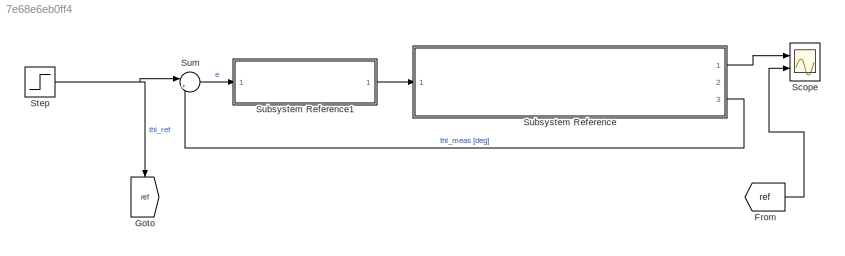
MODEL slx_7e68e6eb0ff4
KIND model
CONFIG AbsTol = auto
CONFIG EnableMultiTasking = off
CONFIG FixedStep = auto
CONFIG MaxStep = auto
CONFIG MinStep = auto
CONFIG RelTol = 1e-3
CONFIG SampleTimeConstraint = Unconstrained
CONFIG SolverName = ode45
CONFIG StartTime = 0.0
CONFIG StopTime = 5
BLOCK [From] From
  GotoTag = ref
BLOCK [Goto] Goto
  GotoTag = ref
  NameLocation = left
BLOCK [Scope] Scope
  Floating = off
  NumInputPorts = 2
  Ports = [2]
  ScopeSpecificationString = Simulink.scopes.TimeScopeBlockCfg('CurrentConfiguration', extmgr.ConfigurationSet(extmgr.Configuration('Core','General UI',true),extmgr.Configuration('Core','Source UI',true),extmgr.Configuration('Sources','WiredSimulink',true,'DataLogging',true,'DataLoggingVariableName','thl_meas','DataLoggingSaveFormat','StructureWithTime'),extmgr.Configuration('Visuals','Time Domain',true,'SerializedDisplays',{...<+1495ch>
BLOCK [Step] Step
  After = 70
  SampleTime = 0
  Time = 0
BLOCK [SubSystem] Subsystem Reference
  Ports = [1, 3]
  ReferencedSubsystem = DCServoMotor_SubSystem
  RequestExecContextInheritance = off
BLOCK [SubSystem] Subsystem Reference1
  Ports = [1, 1]
  ReferencedSubsystem = PIDDigital_SubSystem
  RequestExecContextInheritance = off
BLOCK [Sum] Sum
  Inputs = |+-
  Ports = [2, 1]
LINE From:1 -> Scope:2
NET Step:1 -> Goto:1, Sum:1
LINE Subsystem Reference1:1 -> Subsystem Reference:1
LINE Subsystem Reference:1 -> Scope:1
LINE Subsystem Reference:3 -> Sum:2
LINE Sum:1 -> Subsystem Reference1:1
note: NET lines group one-source signal fan-out (src -> all destinations, sorted); 1:1 wires keep LINE
